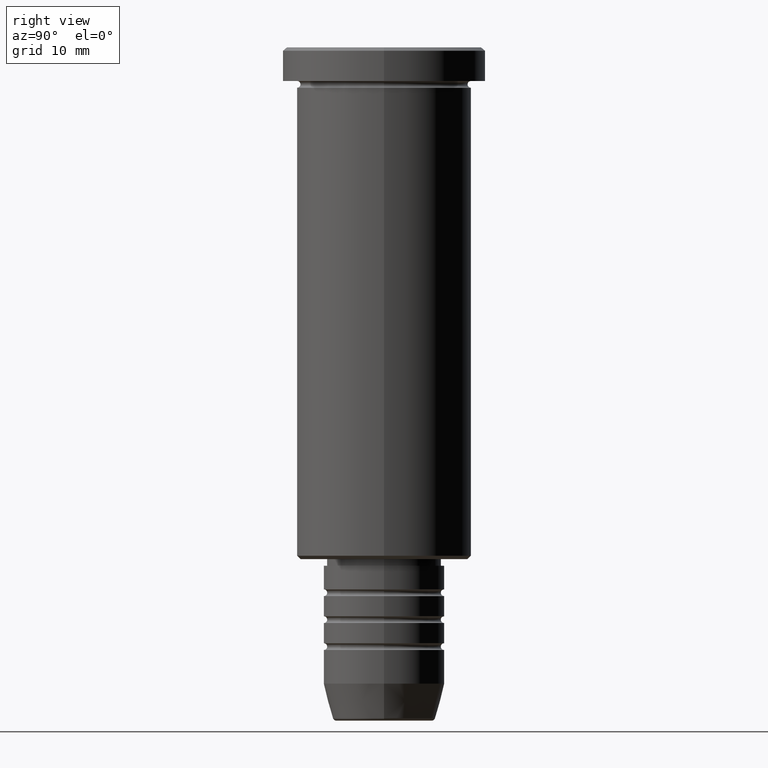
[diagram: clean part render]
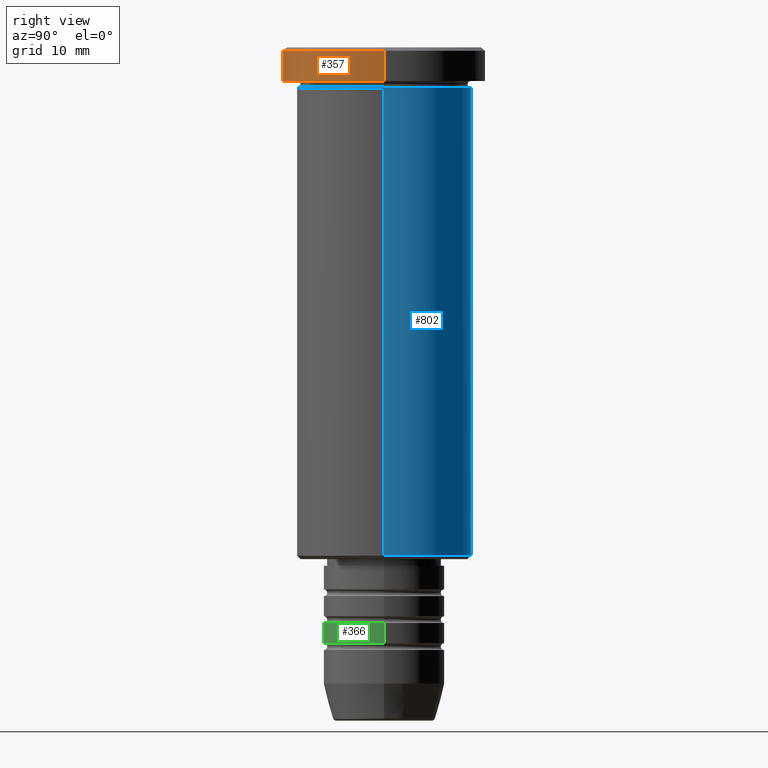
[diagram: same view with three faces highlighted in distinct colors, each labeled with its STEP entity id]
A machine part, right view with three faces highlighted in distinct colors.
Their STEP definitions:

[orange] entity #357 — the highlighted cylindrical surface (partial cylindrical patch) has radius 15 mm, axis along (-0, -0, 1).
#25 = ORIENTED_EDGE ( 'NONE', *, *, #254, .T. ) ;
#59 = CARTESIAN_POINT ( 'NONE',  ( 0.000000000000000000, 0.000000000000000000, 0.000000000000000000 ) ) ;
#63 = ORIENTED_EDGE ( 'NONE', *, *, #624, .F. ) ;
#65 = LINE ( 'NONE', #791, #396 ) ;
#95 = AXIS2_PLACEMENT_3D ( 'NONE', #304, #301, #571 ) ;
#150 = EDGE_CURVE ( 'NONE', #851, #810, #649, .T. ) ;
#220 = LINE ( 'NONE', #573, #1068 ) ;
#221 = CARTESIAN_POINT ( 'NONE',  ( -15.00000000000000000, 1.836970198721029589E-15, -4.999999999999999112 ) ) ;
#254 = EDGE_CURVE ( 'NONE', #555, #613, #1010, .T. ) ;
#255 = CARTESIAN_POINT ( 'NONE',  ( -15.00000000000000000, 1.836970198721029589E-15, -0.4999999999999831246 ) ) ;
#258 = AXIS2_PLACEMENT_3D ( 'NONE', #59, #787, #1151 ) ;
#301 = DIRECTION ( 'NONE',  ( 0.000000000000000000, 0.000000000000000000, -1.000000000000000000 ) ) ;
#304 = CARTESIAN_POINT ( 'NONE',  ( 0.000000000000000000, 0.000000000000000000, -0.4999999999999831246 ) ) ;
#320 = CARTESIAN_POINT ( 'NONE',  ( 15.00000000000000000, 0.000000000000000000, -4.999999999999999112 ) ) ;
#357 = ADVANCED_FACE ( 'NONE', ( #873 ), #793, .T. ) ;
#396 = VECTOR ( 'NONE', #478, 1000.000000000000000 ) ;
#478 = DIRECTION ( 'NONE',  ( -0.000000000000000000, -0.000000000000000000, 1.000000000000000000 ) ) ;
#555 = VERTEX_POINT ( 'NONE', #221 ) ;
#571 = DIRECTION ( 'NONE',  ( 1.000000000000000000, 0.000000000000000000, 0.000000000000000000 ) ) ;
#572 = ORIENTED_EDGE ( 'NONE', *, *, #980, .T. ) ;
#573 = CARTESIAN_POINT ( 'NONE',  ( 15.00000000000000000, 0.000000000000000000, 0.000000000000000000 ) ) ;
#613 = VERTEX_POINT ( 'NONE', #320 ) ;
#624 = EDGE_CURVE ( 'NONE', #555, #810, #65, .T. ) ;
#639 = ORIENTED_EDGE ( 'NONE', *, *, #150, .T. ) ;
#648 = EDGE_LOOP ( 'NONE', ( #63, #25, #572, #639 ) ) ;
#649 = CIRCLE ( 'NONE', #95, 15.00000000000000000 ) ;
#739 = CARTESIAN_POINT ( 'NONE',  ( 0.000000000000000000, 0.000000000000000000, -4.999999999999999112 ) ) ;
#787 = DIRECTION ( 'NONE',  ( -0.000000000000000000, -0.000000000000000000, 1.000000000000000000 ) ) ;
#791 = CARTESIAN_POINT ( 'NONE',  ( -15.00000000000000000, 1.836970198721029589E-15, 0.000000000000000000 ) ) ;
#793 = CYLINDRICAL_SURFACE ( 'NONE', #258, 15.00000000000000000 ) ;
#810 = VERTEX_POINT ( 'NONE', #255 ) ;
#837 = AXIS2_PLACEMENT_3D ( 'NONE', #739, #968, #981 ) ;
#851 = VERTEX_POINT ( 'NONE', #1096 ) ;
#873 = FACE_OUTER_BOUND ( 'NONE', #648, .T. ) ;
#951 = DIRECTION ( 'NONE',  ( -0.000000000000000000, -0.000000000000000000, 1.000000000000000000 ) ) ;
#968 = DIRECTION ( 'NONE',  ( -0.000000000000000000, -0.000000000000000000, 1.000000000000000000 ) ) ;
#980 = EDGE_CURVE ( 'NONE', #613, #851, #220, .T. ) ;
#981 = DIRECTION ( 'NONE',  ( 1.000000000000000000, 0.000000000000000000, 0.000000000000000000 ) ) ;
#1010 = CIRCLE ( 'NONE', #837, 15.00000000000000000 ) ;
#1068 = VECTOR ( 'NONE', #951, 1000.000000000000000 ) ;
#1096 = CARTESIAN_POINT ( 'NONE',  ( 15.00000000000000000, 0.000000000000000000, -0.4999999999999831246 ) ) ;
#1151 = DIRECTION ( 'NONE',  ( 1.000000000000000000, 0.000000000000000000, 0.000000000000000000 ) ) ;

[blue] entity #802 — the highlighted cylindrical surface (partial cylindrical patch) has radius 13 mm, axis along (-0, -0, 1).
#37 = EDGE_CURVE ( 'NONE', #546, #808, #1046, .T. ) ;
#71 = CARTESIAN_POINT ( 'NONE',  ( -13.00000000000000178, 1.592040838891559293E-15, -75.50000000000000000 ) ) ;
#106 = VERTEX_POINT ( 'NONE', #421 ) ;
#119 = DIRECTION ( 'NONE',  ( 1.000000000000000000, 0.000000000000000000, 0.000000000000000000 ) ) ;
#186 = FACE_OUTER_BOUND ( 'NONE', #315, .T. ) ;
#187 = ORIENTED_EDGE ( 'NONE', *, *, #740, .F. ) ;
#250 = LINE ( 'NONE', #1093, #480 ) ;
#257 = ORIENTED_EDGE ( 'NONE', *, *, #37, .F. ) ;
#267 = DIRECTION ( 'NONE',  ( -0.000000000000000000, -0.000000000000000000, 1.000000000000000000 ) ) ;
#315 = EDGE_LOOP ( 'NONE', ( #908, #711, #257, #187 ) ) ;
#334 = CARTESIAN_POINT ( 'NONE',  ( -13.00000000000000178, 1.592040838891559293E-15, -5.999999999999999112 ) ) ;
#381 = CIRCLE ( 'NONE', #1014, 13.00000000000000178 ) ;
#421 = CARTESIAN_POINT ( 'NONE',  ( 13.00000000000000178, 0.000000000000000000, -75.50000000000000000 ) ) ;
#425 = CARTESIAN_POINT ( 'NONE',  ( 0.000000000000000000, 0.000000000000000000, 0.000000000000000000 ) ) ;
#440 = VECTOR ( 'NONE', #883, 1000.000000000000000 ) ;
#480 = VECTOR ( 'NONE', #267, 1000.000000000000000 ) ;
#546 = VERTEX_POINT ( 'NONE', #1149 ) ;
#603 = AXIS2_PLACEMENT_3D ( 'NONE', #425, #1173, #609 ) ;
#609 = DIRECTION ( 'NONE',  ( 1.000000000000000000, 0.000000000000000000, 0.000000000000000000 ) ) ;
#629 = VERTEX_POINT ( 'NONE', #71 ) ;
#658 = EDGE_CURVE ( 'NONE', #629, #808, #680, .T. ) ;
#662 = CARTESIAN_POINT ( 'NONE',  ( 0.000000000000000000, 0.000000000000000000, -5.999999999999999112 ) ) ;
#680 = LINE ( 'NONE', #1061, #440 ) ;
#684 = AXIS2_PLACEMENT_3D ( 'NONE', #662, #1026, #119 ) ;
#703 = CYLINDRICAL_SURFACE ( 'NONE', #603, 13.00000000000000178 ) ;
#711 = ORIENTED_EDGE ( 'NONE', *, *, #658, .T. ) ;
#740 = EDGE_CURVE ( 'NONE', #106, #546, #250, .T. ) ;
#802 = ADVANCED_FACE ( 'NONE', ( #186 ), #703, .T. ) ;
#808 = VERTEX_POINT ( 'NONE', #334 ) ;
#883 = DIRECTION ( 'NONE',  ( -0.000000000000000000, -0.000000000000000000, 1.000000000000000000 ) ) ;
#908 = ORIENTED_EDGE ( 'NONE', *, *, #1052, .T. ) ;
#1014 = AXIS2_PLACEMENT_3D ( 'NONE', #1056, #1039, #1148 ) ;
#1026 = DIRECTION ( 'NONE',  ( -0.000000000000000000, -0.000000000000000000, 1.000000000000000000 ) ) ;
#1039 = DIRECTION ( 'NONE',  ( -0.000000000000000000, -0.000000000000000000, 1.000000000000000000 ) ) ;
#1046 = CIRCLE ( 'NONE', #684, 13.00000000000000178 ) ;
#1052 = EDGE_CURVE ( 'NONE', #106, #629, #381, .T. ) ;
#1056 = CARTESIAN_POINT ( 'NONE',  ( 0.000000000000000000, 0.000000000000000000, -75.50000000000000000 ) ) ;
#1061 = CARTESIAN_POINT ( 'NONE',  ( -13.00000000000000178, 1.592040838891559293E-15, 0.000000000000000000 ) ) ;
#1093 = CARTESIAN_POINT ( 'NONE',  ( 13.00000000000000178, 0.000000000000000000, 0.000000000000000000 ) ) ;
#1148 = DIRECTION ( 'NONE',  ( -1.000000000000000000, 0.000000000000000000, 0.000000000000000000 ) ) ;
#1149 = CARTESIAN_POINT ( 'NONE',  ( 13.00000000000000178, 0.000000000000000000, -5.999999999999999112 ) ) ;
#1173 = DIRECTION ( 'NONE',  ( -0.000000000000000000, -0.000000000000000000, 1.000000000000000000 ) ) ;

[green] entity #366 — the highlighted cylindrical surface (partial cylindrical patch) has radius 9 mm, axis along (-0, -0, 1).
#5 = AXIS2_PLACEMENT_3D ( 'NONE', #668, #96, #192 ) ;
#26 = VERTEX_POINT ( 'NONE', #708 ) ;
#44 = CARTESIAN_POINT ( 'NONE',  ( -9.000000000000000000, 1.102182119232617714E-15, -85.49999999999998579 ) ) ;
#79 = AXIS2_PLACEMENT_3D ( 'NONE', #118, #1020, #744 ) ;
#82 = CIRCLE ( 'NONE', #5, 9.000000000000000000 ) ;
#96 = DIRECTION ( 'NONE',  ( -0.000000000000000000, -0.000000000000000000, 1.000000000000000000 ) ) ;
#103 = DIRECTION ( 'NONE',  ( -0.000000000000000000, -0.000000000000000000, 1.000000000000000000 ) ) ;
#118 = CARTESIAN_POINT ( 'NONE',  ( 0.000000000000000000, 0.000000000000000000, 0.000000000000000000 ) ) ;
#190 = EDGE_LOOP ( 'NONE', ( #852, #871, #595, #1114 ) ) ;
#192 = DIRECTION ( 'NONE',  ( 1.000000000000000000, 0.000000000000000000, 0.000000000000000000 ) ) ;
#195 = VECTOR ( 'NONE', #685, 1000.000000000000000 ) ;
#212 = CYLINDRICAL_SURFACE ( 'NONE', #79, 9.000000000000001776 ) ;
#226 = DIRECTION ( 'NONE',  ( -0.000000000000000000, -0.000000000000000000, 1.000000000000000000 ) ) ;
#241 = CIRCLE ( 'NONE', #542, 9.000000000000001776 ) ;
#308 = VECTOR ( 'NONE', #103, 1000.000000000000000 ) ;
#318 = CARTESIAN_POINT ( 'NONE',  ( -9.000000000000001776, 1.102182119232617911E-15, 0.000000000000000000 ) ) ;
#366 = ADVANCED_FACE ( 'NONE', ( #661 ), #212, .T. ) ;
#413 = EDGE_CURVE ( 'NONE', #26, #439, #942, .T. ) ;
#439 = VERTEX_POINT ( 'NONE', #850 ) ;
#542 = AXIS2_PLACEMENT_3D ( 'NONE', #782, #226, #779 ) ;
#595 = ORIENTED_EDGE ( 'NONE', *, *, #413, .T. ) ;
#659 = CARTESIAN_POINT ( 'NONE',  ( -9.000000000000001776, 1.102182119232617911E-15, -88.49999999999998579 ) ) ;
#661 = FACE_OUTER_BOUND ( 'NONE', #190, .T. ) ;
#668 = CARTESIAN_POINT ( 'NONE',  ( 0.000000000000000000, 0.000000000000000000, -85.49999999999998579 ) ) ;
#685 = DIRECTION ( 'NONE',  ( -0.000000000000000000, -0.000000000000000000, 1.000000000000000000 ) ) ;
#708 = CARTESIAN_POINT ( 'NONE',  ( 9.000000000000001776, 0.000000000000000000, -88.49999999999998579 ) ) ;
#744 = DIRECTION ( 'NONE',  ( 1.000000000000000000, 0.000000000000000000, 0.000000000000000000 ) ) ;
#779 = DIRECTION ( 'NONE',  ( 1.000000000000000000, 0.000000000000000000, 0.000000000000000000 ) ) ;
#782 = CARTESIAN_POINT ( 'NONE',  ( 0.000000000000000000, 0.000000000000000000, -88.49999999999998579 ) ) ;
#789 = LINE ( 'NONE', #318, #195 ) ;
#850 = CARTESIAN_POINT ( 'NONE',  ( 9.000000000000000000, 0.000000000000000000, -85.49999999999998579 ) ) ;
#852 = ORIENTED_EDGE ( 'NONE', *, *, #1122, .F. ) ;
#871 = ORIENTED_EDGE ( 'NONE', *, *, #1013, .T. ) ;
#902 = VERTEX_POINT ( 'NONE', #659 ) ;
#926 = EDGE_CURVE ( 'NONE', #1059, #439, #82, .T. ) ;
#942 = LINE ( 'NONE', #1123, #308 ) ;
#1013 = EDGE_CURVE ( 'NONE', #902, #26, #241, .T. ) ;
#1020 = DIRECTION ( 'NONE',  ( -0.000000000000000000, -0.000000000000000000, 1.000000000000000000 ) ) ;
#1059 = VERTEX_POINT ( 'NONE', #44 ) ;
#1114 = ORIENTED_EDGE ( 'NONE', *, *, #926, .F. ) ;
#1122 = EDGE_CURVE ( 'NONE', #902, #1059, #789, .T. ) ;
#1123 = CARTESIAN_POINT ( 'NONE',  ( 9.000000000000001776, 0.000000000000000000, 0.000000000000000000 ) ) ;